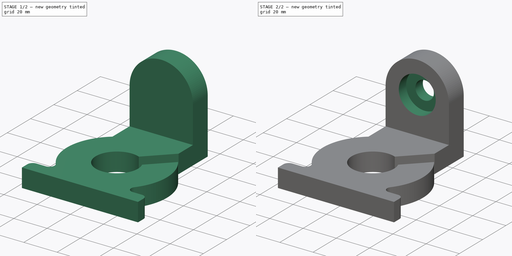
[diagram: build sequence overview — one tinted view per stage of 2, left to right]
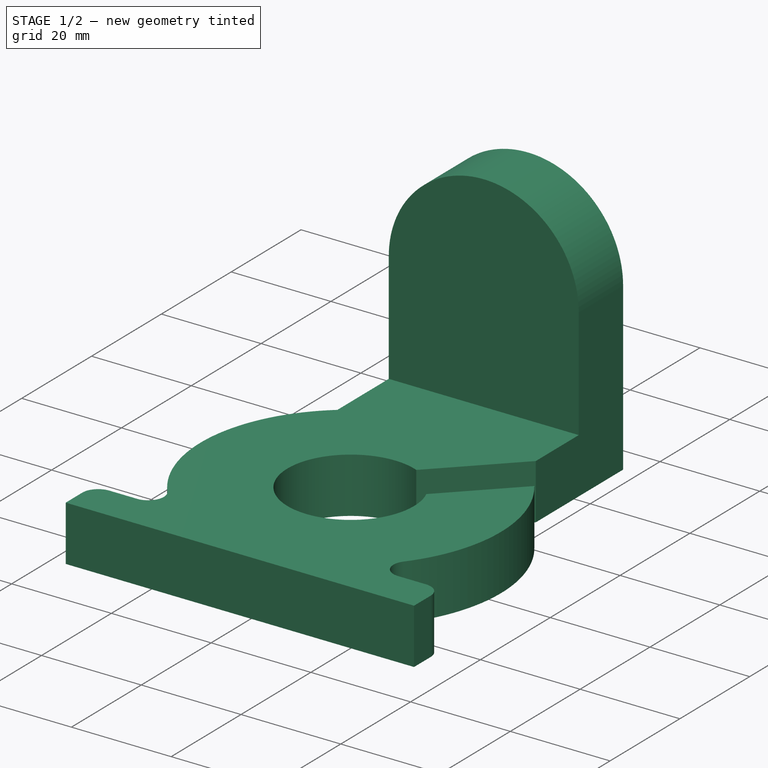
[diagram: stage 1 of 2 — iso view after this stage's code; geometry added in this stage tinted green]
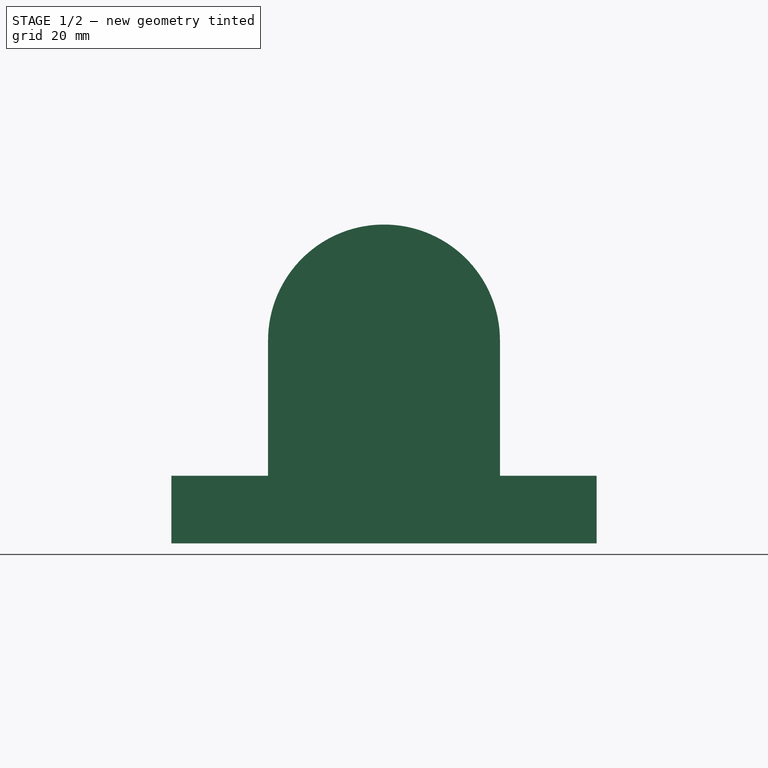
[diagram: stage 1 of 2 — front view after this stage's code; geometry added in this stage tinted green]
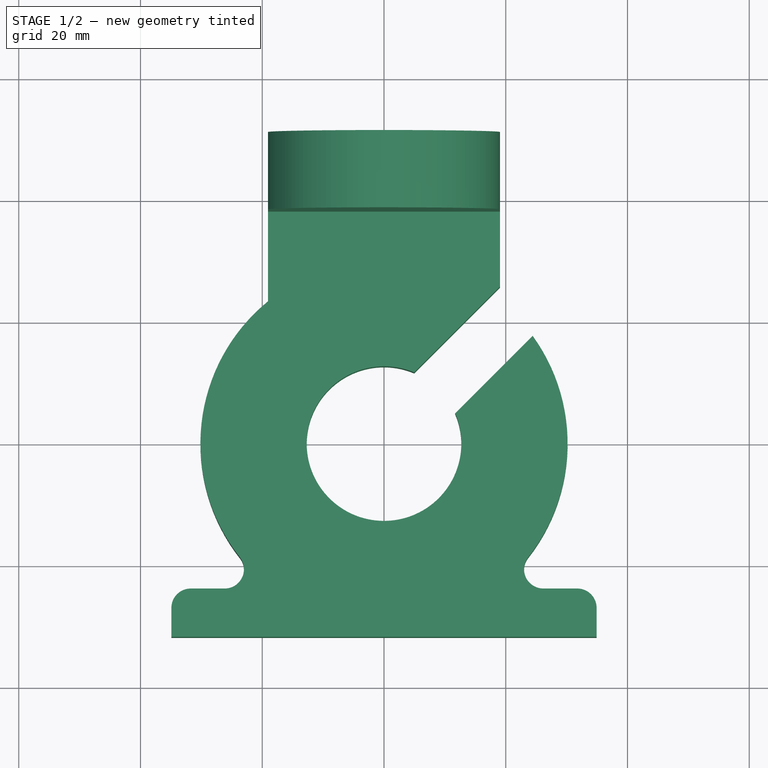
[diagram: stage 1 of 2 — top view after this stage's code; geometry added in this stage tinted green]
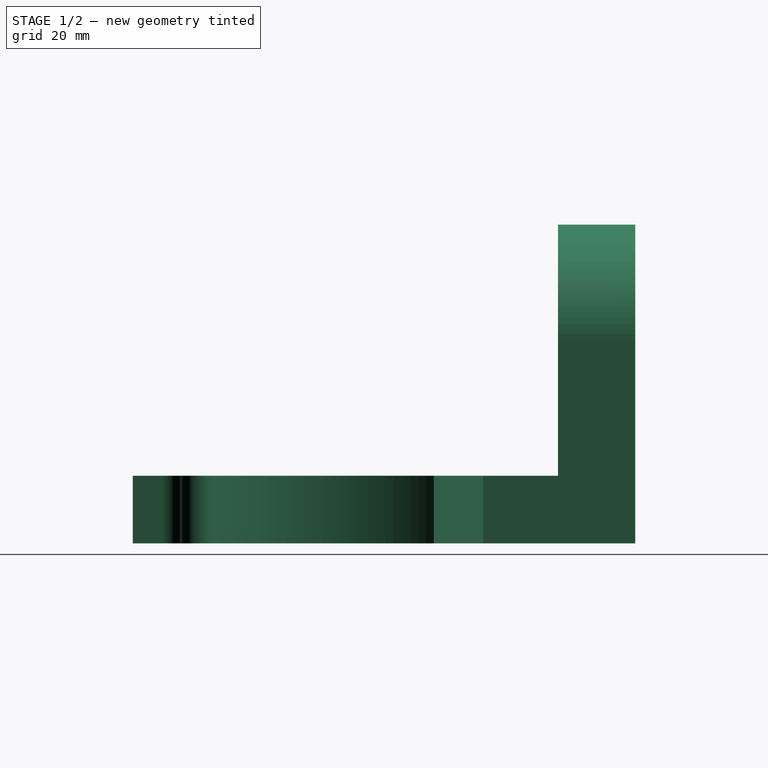
[diagram: stage 1 of 2 — right view after this stage's code; geometry added in this stage tinted green]
FCSTD DOCUMENT  (FreeCAD 0.16R)
Label: thing
License: All rights reserved
LicenseURL: http://en.wikipedia.org/wiki/All_rights_reserved
objects: Sketcher::SketchObject×4, PartDesign::Pad×2, PartDesign::Pocket×2
note: 12 computed .brp shape members not serialized (recipe doc carries the construction recipe); baked Part::Feature solids carry a one-line shape summary decoded from their .brp

FEATURE [Sketcher::SketchObject] Sketch  label="Base"
  sketch-geometry (19):
    g0: ArcOfCircle CenterX=0 CenterY=0 CenterZ=0 NormalX=0 NormalY=0 NormalZ=1 Radius=12.7 StartAngle=1.16979 EndAngle=6.68419
    g1: LineSegment [constr] StartX=0 StartY=0 StartZ=0 EndX=8.32492 EndY=8.32492 EndZ=0
    g2: LineSegment StartX=19.05 StartY=25.7852 StartZ=0 EndX=4.95732 EndY=11.6925 EndZ=0
    g3: LineSegment StartX=24.4282 StartY=17.693 StartZ=0 EndX=11.6925 EndY=4.95732 EndZ=0
    g4: LineSegment [constr] StartX=11.6925 StartY=4.95732 StartZ=0 EndX=4.95732 EndY=11.6925 EndZ=0
    g5: LineSegment StartX=-19.05 StartY=23.3853 StartZ=0 EndX=-19.05 EndY=38.1 EndZ=0
    g6: LineSegment StartX=-19.05 StartY=38.1 StartZ=0 EndX=19.05 EndY=38.1 EndZ=0
    g7: LineSegment StartX=19.05 StartY=38.1 StartZ=0 EndX=19.05 EndY=25.7852 EndZ=0
    g8: LineSegment StartX=-34.925 StartY=-31.75 StartZ=0 EndX=34.925 EndY=-31.75 EndZ=0
    g9: LineSegment StartX=-34.925 StartY=-31.75 StartZ=0 EndX=-34.925 EndY=-26.9875 EndZ=0
    g10: LineSegment StartX=-31.75 StartY=-23.8125 StartZ=0 EndX=-26.1817 EndY=-23.8125 EndZ=0
    g11: LineSegment StartX=34.925 StartY=-31.75 StartZ=0 EndX=34.925 EndY=-26.9875 EndZ=0
    g12: LineSegment StartX=31.75 StartY=-23.8125 StartZ=0 EndX=26.1817 EndY=-23.8125 EndZ=0
    g13: ArcOfCircle CenterX=0 CenterY=0 CenterZ=0 NormalX=0 NormalY=0 NormalZ=1 Radius=30.1625 StartAngle=5.61566 EndAngle=6.91003
    g14: ArcOfCircle CenterX=0 CenterY=0 CenterZ=0 NormalX=0 NormalY=0 NormalZ=1 Radius=30.1625 StartAngle=2.25438 EndAngle=3.80912
    g15: ArcOfCircle CenterX=-31.75 CenterY=-26.9875 CenterZ=0 NormalX=0 NormalY=0 NormalZ=1 Radius=3.175 StartAngle=1.5708 EndAngle=3.14159
    g16: ArcOfCircle CenterX=31.75 CenterY=-26.9875 CenterZ=0 NormalX=0 NormalY=0 NormalZ=1 Radius=3.175 StartAngle=0 EndAngle=1.5708
    g17: ArcOfCircle CenterX=-26.1817 CenterY=-20.6375 CenterZ=0 NormalX=0 NormalY=0 NormalZ=1 Radius=3.175 StartAngle=4.71239 EndAngle=6.95071
    g18: ArcOfCircle CenterX=26.1817 CenterY=-20.6375 CenterZ=0 NormalX=0 NormalY=0 NormalZ=1 Radius=3.175 StartAngle=2.47406 EndAngle=4.71238
  constraints (55):
    c: Coincident(g0,g-1)
    c: Coincident(g1,g-1)
    c: Angle(g1) = 0.785398
    c: Parallel(g2,g1)
    c: Parallel(g3,g1)
    c: Coincident(g0,g2)
    c: Coincident(g0,g3)
    c: Symmetric(g0,g0,g1)
    c: Distance(g0,g0) = 9.525
    c: Coincident(g4,g0)
    c: Coincident(g4,g0)
    c: PointOnObject(g1,g4)
    c: Vertical(g5)
    c: Coincident(g6,g5)
    c: Horizontal(g6)
    c: Coincident(g7,g6)
    c: Vertical(g7)
    c: Coincident(g7,g2)
    c: DistanceX(g6,g6) = 38.1
    c: DistanceY(g8,g-1) = 31.75
    c: DistanceY(g8,g5) = 69.85
    c: Symmetric(g8,g8,g-2)
    c: DistanceX(g8,g8) = 69.85
    c: Coincident(g9,g8)
    c: Vertical(g9)
    c: Horizontal(g10)
    c: Coincident(g11,g8)
    c: Vertical(g11)
    c: Horizontal(g12)
    c: Equal(g9,g11)
    c: Coincident(g13,g-1)
    c: Coincident(g13,g3)
    c: Radius(g13) = 30.1625
    c: Coincident(g14,g-1)
    c: Coincident(g14,g5)
    c: Radius(g14) = 30.1625
    c: Symmetric(g5,g6,g-2)
    c: Tangent(g9,g15) = 1.5708
    c: Tangent(g10,g15) = 1.5708
    c: Tangent(g11,g16) = -1.5708
    c: Tangent(g12,g16) = -1.5708
    c: Radius(g15) = 3.175
    c: Equal(g15,g16)
    c: DistanceY(g8,g12) = 7.9375
    c: Coincident(g17,g14)
    c: Coincident(g17,g10)
    c: Radius(g17) = 3.175
    c: Symmetric(g14,g13,g-2)
    c: Symmetric(g12,g10,g-2)
    c: Coincident(g18,g12)
    c: Coincident(g18,g13)
    c: Equal(g18,g17)
    c: Radius(g0) = 12.7
    c: Tangent(g14,g17)
    c: Tangent(g17,g10)
FEATURE [PartDesign::Pad] Pad  label="Base Pad"
  Length = 11.1125
  Length2 = 100
  Sketch = -> Sketch
  Type = 0
FEATURE [Sketcher::SketchObject] Sketch001  label="Flange"
  ExternalGeometry = -> [Pad]
  Placement = pos=(0,38.1,0) rot=(0,0.707107,0.707107;3.14159rad)
  Support = -> Pad [Face2]
  sketch-geometry (7):
    g0: LineSegment StartX=-19.05 StartY=0 StartZ=0 EndX=19.05 EndY=0 EndZ=0
    g1: ArcOfCircle CenterX=-2.34881e-05 CenterY=33.3375 CenterZ=0 NormalX=0 NormalY=0 NormalZ=1 Radius=19.05 StartAngle=2.13821e-06 EndAngle=3.14159
    g2: LineSegment StartX=-19.05 StartY=0 StartZ=0 EndX=-19.05 EndY=11.1125 EndZ=0
    g3: LineSegment StartX=19.05 StartY=0 StartZ=0 EndX=19.05 EndY=11.1125 EndZ=0
    g4: LineSegment StartX=-19.05 StartY=33.3375 StartZ=0 EndX=-19.05 EndY=11.1125 EndZ=0
    g5: LineSegment StartX=19.05 StartY=33.3375 StartZ=0 EndX=19.05 EndY=11.1125 EndZ=0
    g6: GeomPoint [constr] X=0 Y=11.1125 Z=0
  constraints (17):
    c: Coincident(g0,g-4)
    c: Coincident(g0,g-3)
    c: Coincident(g2,g0)
    c: Coincident(g2,g-5)
    c: Coincident(g3,g0)
    c: Coincident(g3,g-5)
    c: Coincident(g4,g1)
    c: Coincident(g4,g2)
    c: Tangent(g4,g1)
    c: Coincident(g5,g1)
    c: Coincident(g5,g3)
    c: Tangent(g1,g5)
    c: Equal(g5,g4)
    c: PointOnObject(g6,g-2)
    c: PointOnObject(g6,g-5)
    c: DistanceY(g6,g1) = 22.225
    c: Vertical(g4)
FEATURE [PartDesign::Pad] Pad001  label="Flange Pad"
  Length = 12.7
  Length2 = 100
  Sketch = -> Sketch001
  Type = 0
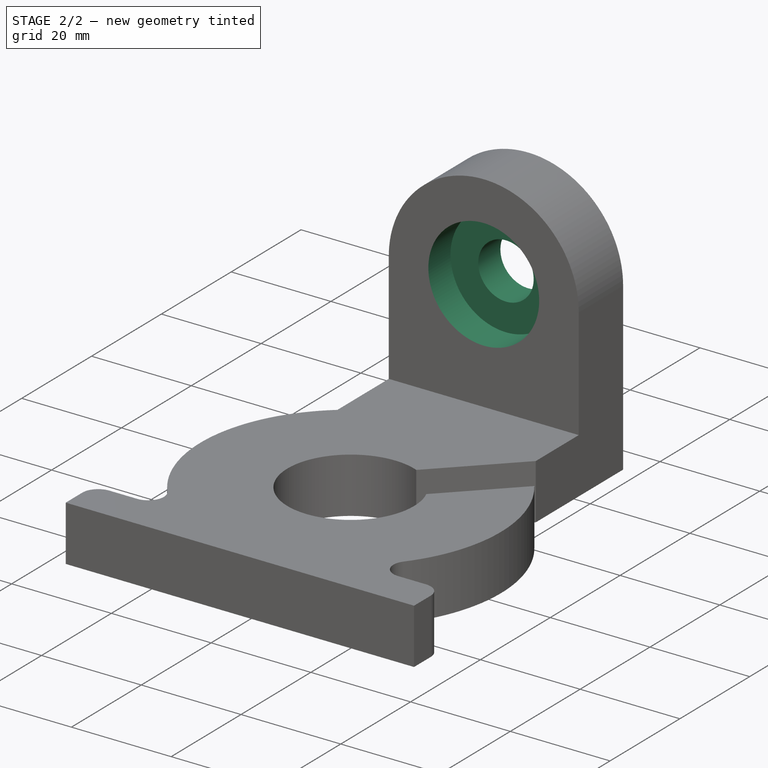
[diagram: stage 2 of 2 — iso view after this stage's code; geometry added in this stage tinted green]
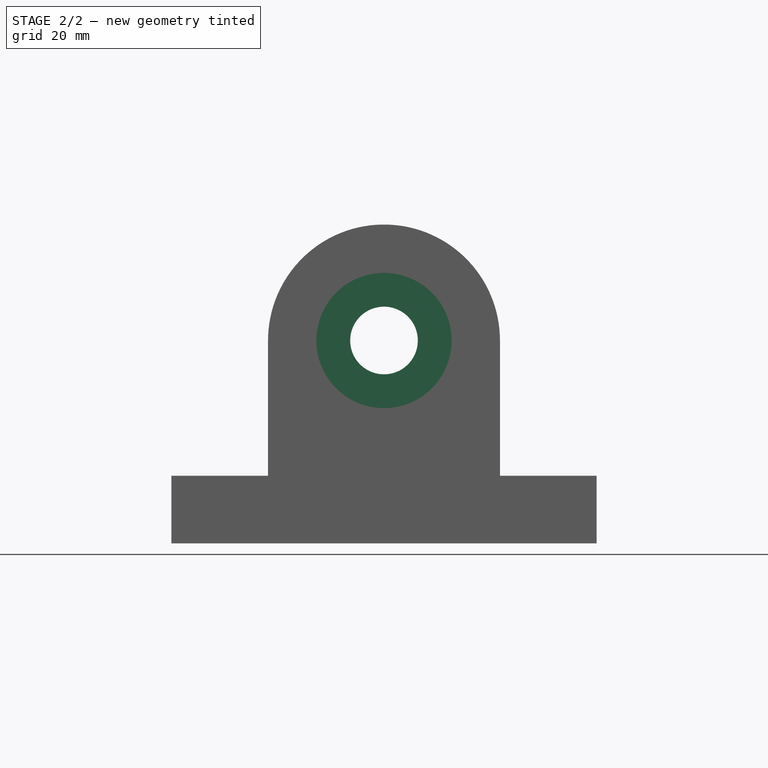
[diagram: stage 2 of 2 — front view after this stage's code; geometry added in this stage tinted green]
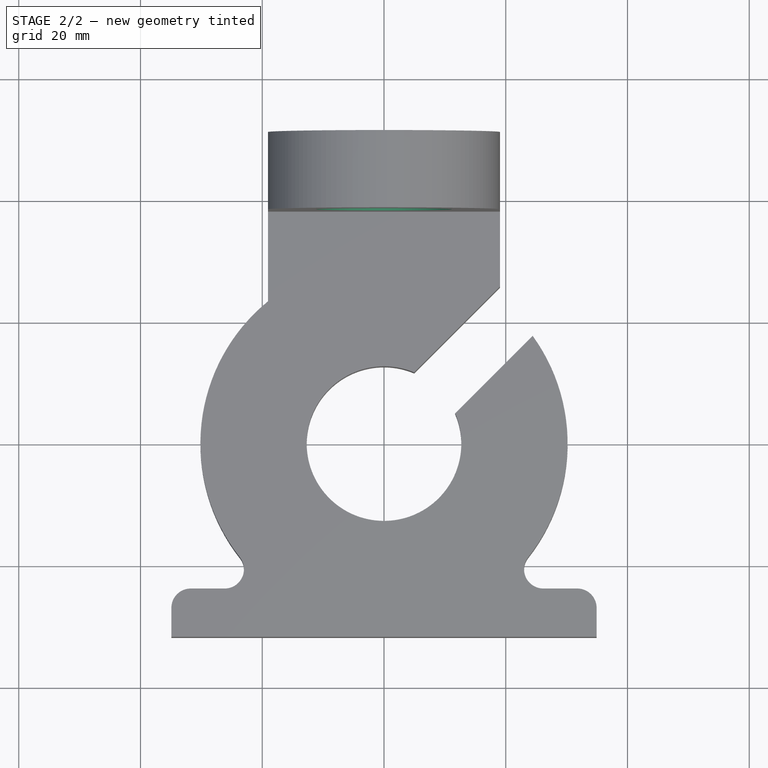
[diagram: stage 2 of 2 — top view after this stage's code; geometry added in this stage tinted green]
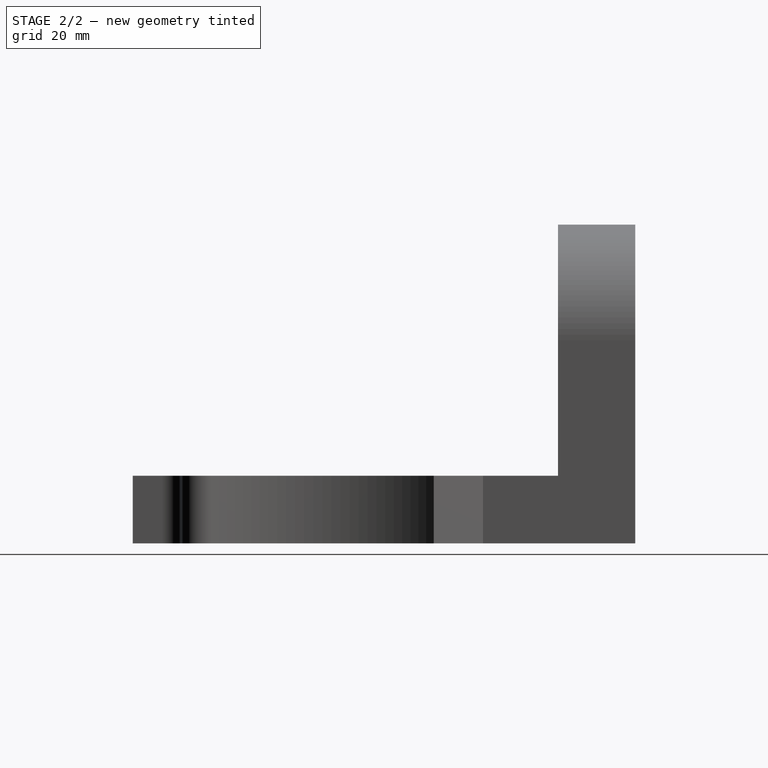
[diagram: stage 2 of 2 — right view after this stage's code; geometry added in this stage tinted green]
FEATURE [Sketcher::SketchObject] Sketch002  label="Counterbore"
  Placement = pos=(0,38.1,0) rot=(1,0,0;1.5708rad)
  Support = -> Pad001 [Face16]
  sketch-geometry (1):
    g0: Circle CenterX=0 CenterY=33.3375 CenterZ=0 NormalX=0 NormalY=0 NormalZ=1 Radius=11.1125
  constraints (3):
    c: Radius(g0) = 11.1125
    c: DistanceY(g-1,g0) = 33.3375
    c: PointOnObject(g0,g-2)
FEATURE [PartDesign::Pocket] Pocket  label="Counterbore Pocket"
  Length = 6.35
  Sketch = -> Sketch002
  Type = 0
FEATURE [Sketcher::SketchObject] Sketch003  label="Bore"
  ExternalGeometry = -> [Pocket]
  Placement = pos=(0,44.45,0) rot=(1,0,0;1.5708rad)
  Support = -> Pocket [Face24]
  sketch-geometry (1):
    g0: Circle CenterX=0 CenterY=33.3375 CenterZ=0 NormalX=0 NormalY=0 NormalZ=1 Radius=5.55625
  constraints (2):
    c: Coincident(g0,g-3)
    c: Radius(g0) = 5.55625
FEATURE [PartDesign::Pocket] Pocket001  label="Bore Pocket"
  Length = 4.99999
  Sketch = -> Sketch003
  Type = 1
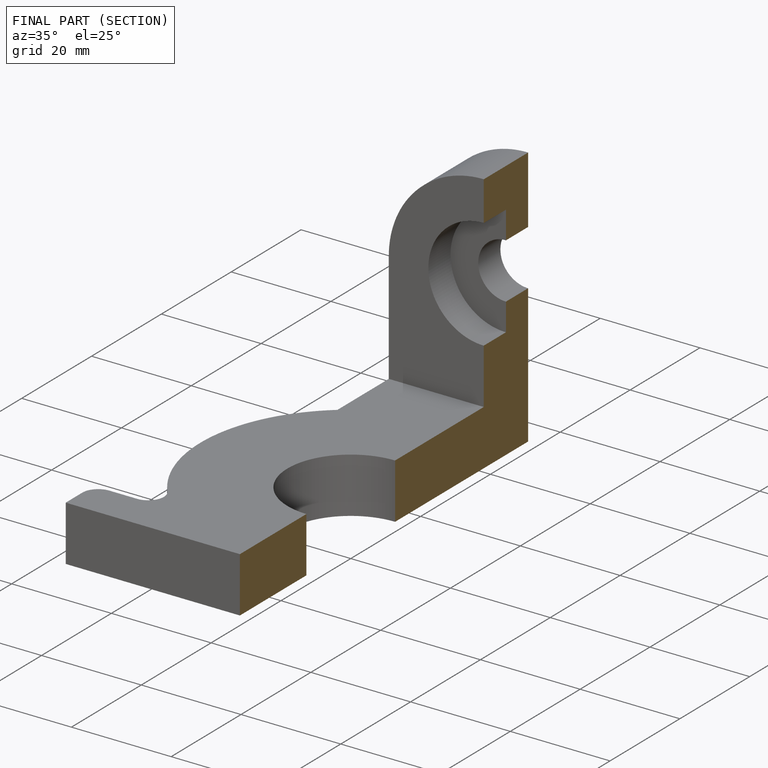
[diagram: finished part — half-section view (interior)]
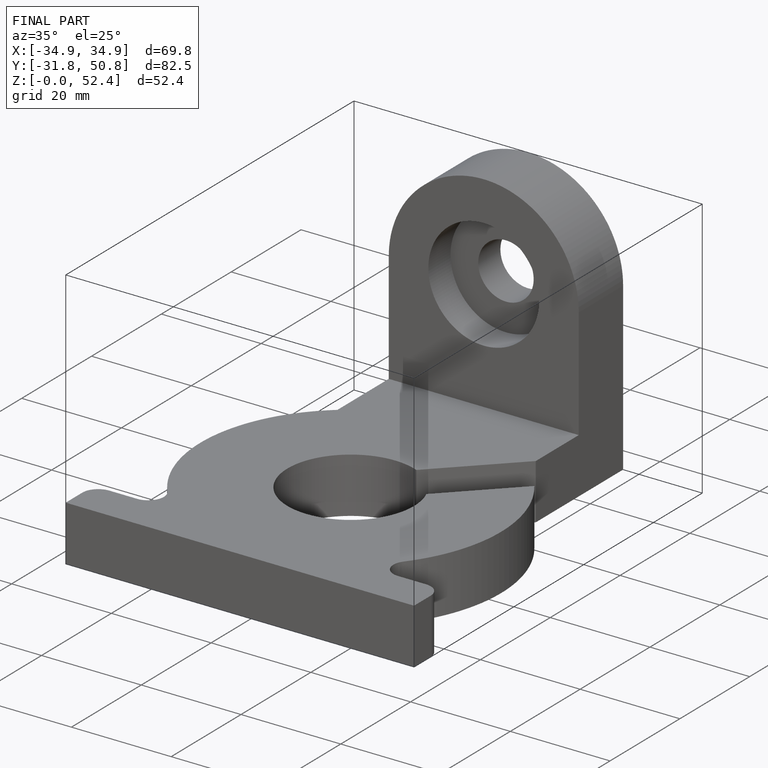
[diagram: finished part — iso view with bounding-box wireframe]
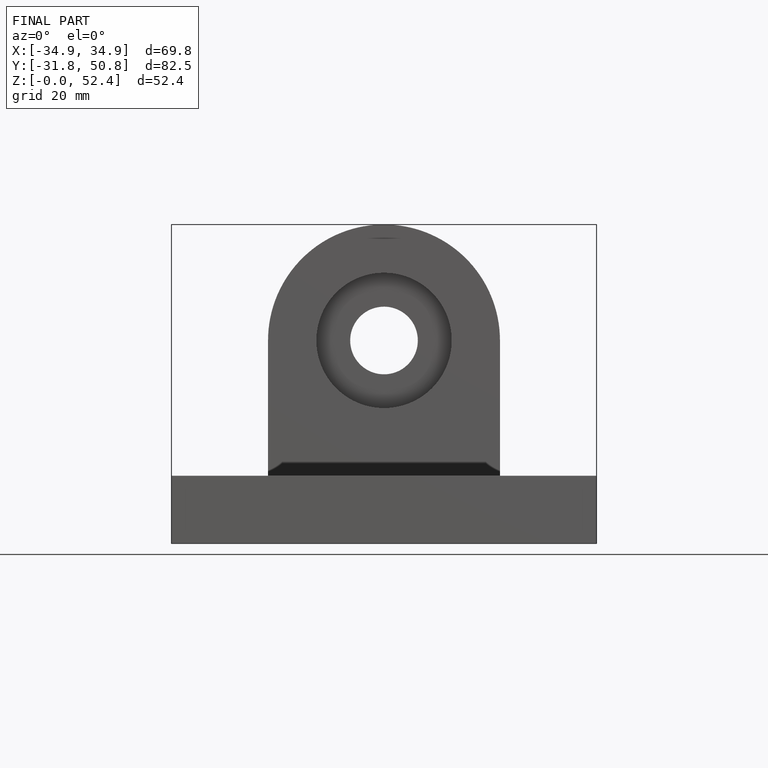
[diagram: finished part — front view with bounding-box wireframe]
